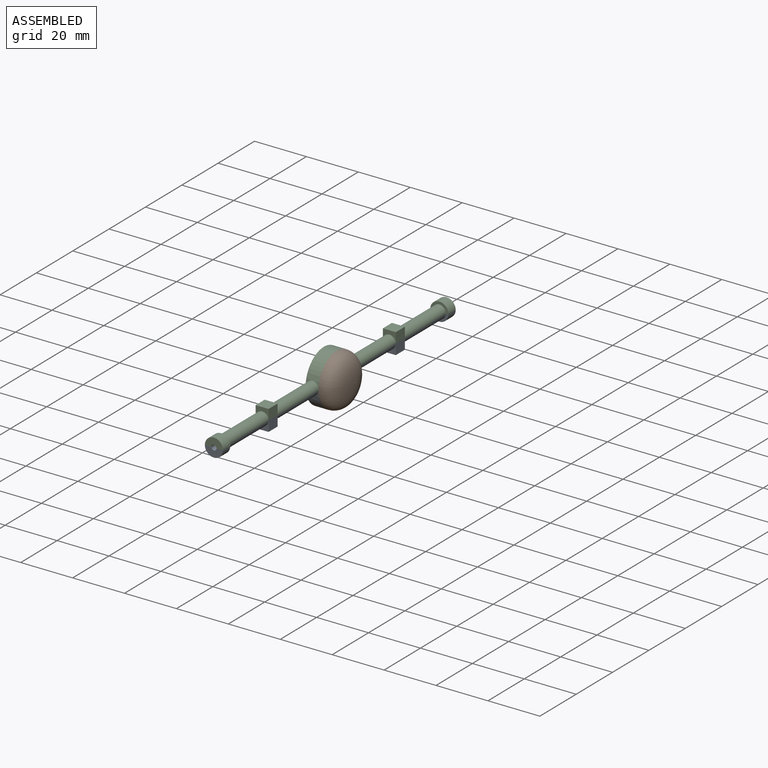
[diagram: assembled view]
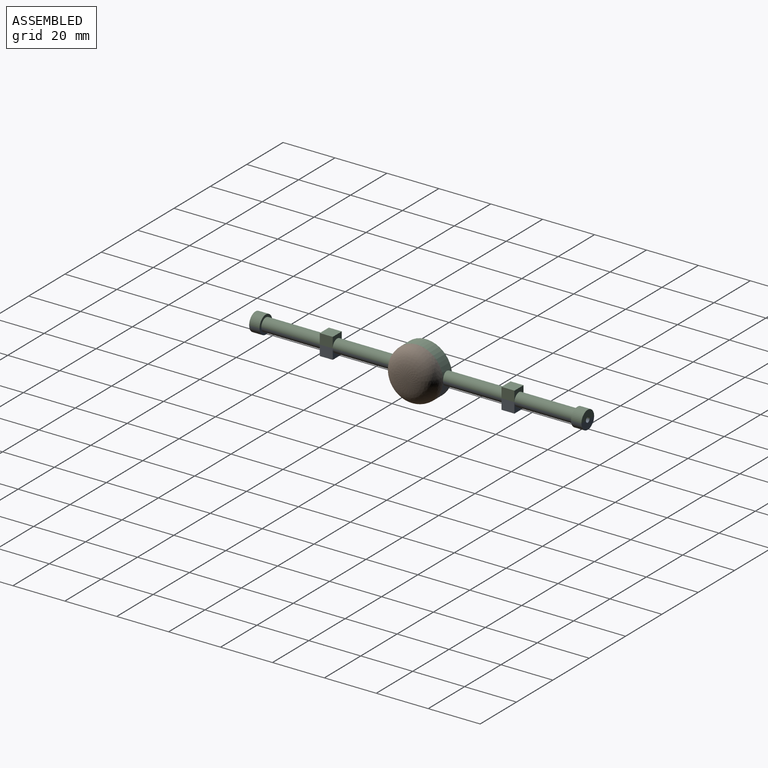
[diagram: assembled view, second angle]
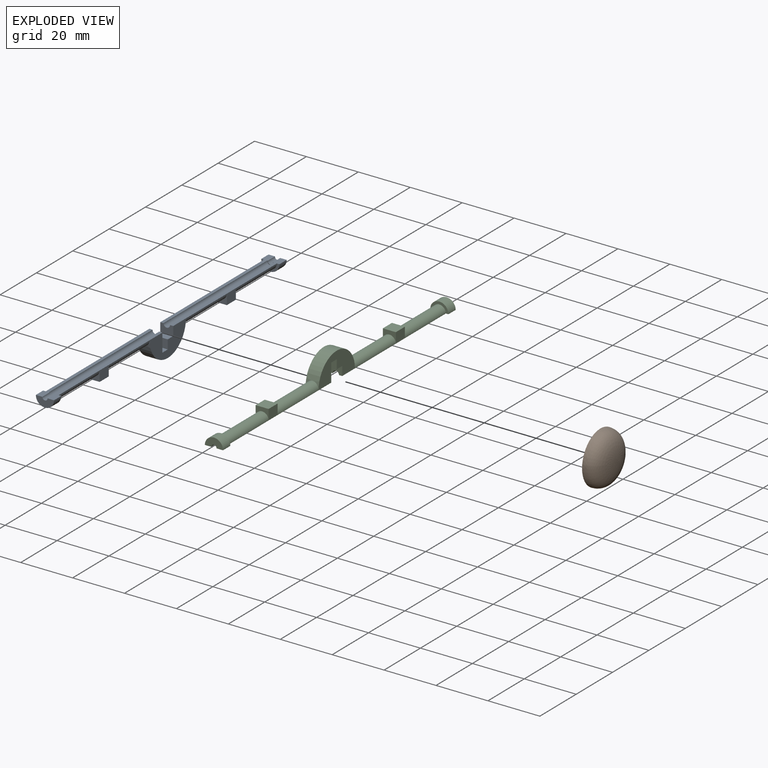
[diagram: exploded view]
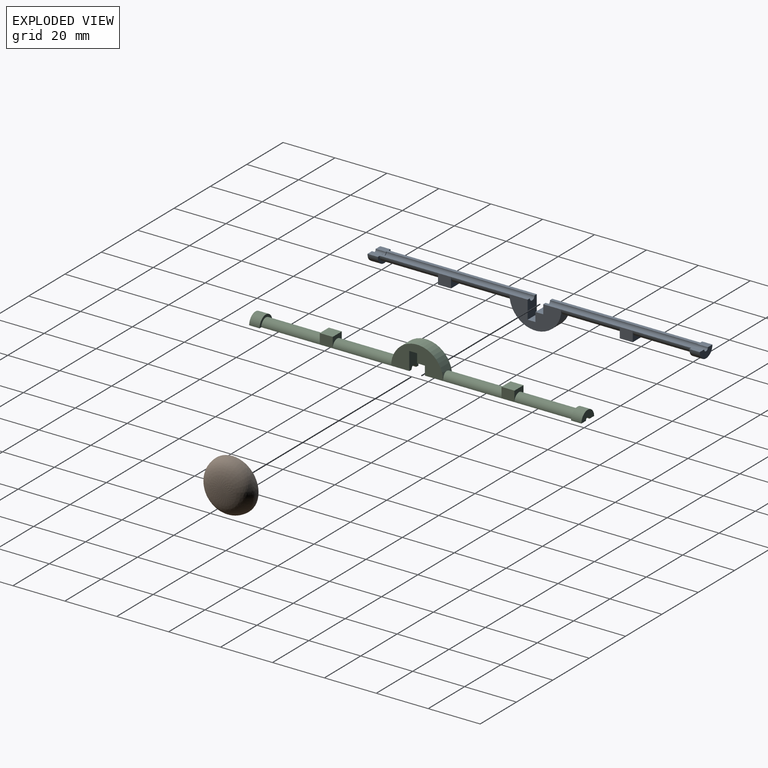
[diagram: exploded view, second angle]
ASSEMBLY  parts=3 mates=2
PART A: 38 faces, bbox 7x128x10 mm
  f0: plane 61x2.5mm, normal (0,0,-1), area 81.3mm2, adj f3,f4,f6,f13,f20,f21,f22,f23
  f1: plane 61x2.5mm, normal (0,0,-1), area 81.3mm2, adj f2,f6,f7,f12,f16,f17,f18,f19
  f2: cylinder r=2.5mm len=22.5mm, axis (0,1,0), area 176.7mm2, adj f1,f8,f16,f30
  f3: cylinder r=2.5mm len=22.5mm, axis (0,1,0), area 176.7mm2, adj f0,f5,f23,f24
  f4: cylinder r=2.5mm len=22.82mm, axis (0,1,0), area 178mm2, adj f0,f5,f9,f26
  f5: plane 61x2.5mm, normal (0,0,-1), area 81.2mm2, adj f3,f4,f10,f13,f20,f21,f22,f23
  f6: plane 20x10mm, normal (1,0,0), area 125.6mm2, adj f0,f1,f9,f11,f12,f13,f14,f15
  f7: cylinder r=2.5mm len=22.82mm, axis (0,1,0), area 178mm2, adj f1,f8,f9,f32
  f8: plane 61x2.5mm, normal (0,0,-1), area 81.2mm2, adj f2,f7,f10,f12,f16,f17,f18,f19
  f9: cylinder r=10mm len=20mm, axis (-1,0,0), area 137.3mm2, adj f4,f6,f7,f10
  f10: plane 20x10mm, normal (-1,0,0), area 125.6mm2, adj f5,f8,f9,f11,f12,f13,f14,f15
  f11: plane 5x3mm, normal (0,0,-1), area 15mm2, adj f6,f10,f12,f15
  f12: plane 7x5mm, normal (0,1,0), area 32.5mm2, adj f1,f6,f8,f10,f11,f36
  f13: plane 5x3.5mm, normal (0,-1,0), area 15mm2, adj f0,f5,f6,f10,f14,f35
  f14: plane 5x3mm, normal (0,0,-1), area 15mm2, adj f6,f10,f13,f15
  f15: plane 5x3.5mm, normal (0,-1,0), area 17.5mm2, adj f6,f10,f11,f14
  f16: plane 7x3.5mm, normal (0,1,0), area 9.4mm2, adj f1,f2,f8,f18
  f17: cylinder r=1mm len=4mm, axis (0,1,0), area 12.6mm2, adj f1,f8,f19,f37
  f18: cylinder r=3.5mm len=7mm, axis (0,1,0), area 44mm2, adj f1,f8,f16,f19
  f19: plane 7x3.5mm, normal (0,-1,0), area 17.7mm2, adj f1,f8,f17,f18
  f20: cylinder r=3.5mm len=7mm, axis (0,-1,0), area 44mm2, adj f0,f5,f22,f23
  f21: cylinder r=1mm len=4mm, axis (0,-1,0), area 12.6mm2, adj f0,f5,f22,f34
  f22: plane 7x3.5mm, normal (0,1,0), area 17.7mm2, adj f0,f5,f20,f21
  f23: plane 7x3.5mm, normal (0,-1,0), area 9.4mm2, adj f0,f3,f5,f20
  f24: plane 5x4mm, normal (0,1,0), area 10.2mm2, adj f3,f25,f27,f28
  f25: plane 5x4mm, normal (1,0,0), area 20mm2, adj f0,f24,f26,f28
  f26: plane 5x4mm, normal (0,-1,0), area 10.2mm2, adj f4,f25,f27,f28
  f27: plane 5x4mm, normal (-1,0,0), area 20mm2, adj f5,f24,f26,f28
  f28: plane 5x5mm, normal (0,0,1), area 25mm2, adj f24,f25,f26,f27
  f29: plane 5x4mm, normal (1,0,0), area 20mm2, adj f1,f30,f32,f33
  f30: plane 5x4mm, normal (0,-1,0), area 10.2mm2, adj f2,f29,f31,f33
  f31: plane 5x4mm, normal (-1,0,0), area 20mm2, adj f8,f30,f32,f33
  f32: plane 5x4mm, normal (0,1,0), area 10.2mm2, adj f7,f29,f31,f33
  f33: plane 5x5mm, normal (0,0,1), area 25mm2, adj f29,f30,f31,f32
  f34: plane 2.5x1.25mm, normal (0,-1,0), area 0.9mm2, adj f0,f5,f21,f35
  f35: cylinder r=1.25mm len=57mm, axis (0,1,0), area 223.8mm2, adj f0,f5,f13,f34
  f36: cylinder r=1.25mm len=57mm, axis (0,1,0), area 223.8mm2, adj f1,f8,f12,f37
  f37: plane 2.5x1.25mm, normal (0,1,0), area 0.9mm2, adj f1,f8,f17,f36
PART B: 11 faces, bbox 20x6x20 mm
  f0: plane 14x4.5mm, normal (1,0,0), area 52.5mm2, adj f1,f7,f9,f10
  f1: plane 6x4.05mm, normal (0,1,0), area 24.3mm2, adj f0,f4,f9,f10
  f2: plane 4.28x3.5mm, normal (-1,0,0), area 10.6mm2, adj f3,f7,f9
  f3: plane 4.28x3mm, normal (0,0,-1), area 12.8mm2, adj f2,f4,f7,f9
  f4: plane 7x4.5mm, normal (-1,0,0), area 31.3mm2, adj f1,f3,f5,f7,f9,f10
  f5: plane 4.28x3mm, normal (0,0,1), area 12.8mm2, adj f4,f6,f7,f10
  f6: plane 4.28x3.5mm, normal (-1,0,0), area 10.6mm2, adj f5,f7,f10
  f7: plane 20x20mm, normal (0,1,0), area 251.2mm2, adj f0,f2,f3,f4,f5,f6,f8,f9
  f8: revolved ~20x20mm, area 497.4mm2, adj f7
  f9: cylinder r=5mm len=6mm, axis (-1,0,0), area 26.6mm2, adj f0,f1,f2,f3,f4,f7
  f10: cylinder r=5mm len=6mm, axis (-1,0,0), area 26.6mm2, adj f0,f1,f4,f5,f6,f7
PART C: same geometry as A
PLACE A rot(axis=(0,1,0),180deg) t=(-44.54,28.25,-14.05)mm
PLACE B rot(axis=(0,0,1),90deg) t=(-42.04,-31.75,-14.05)mm
PLACE C t=(-44.54,28.25,-14.05)mm
MATE planar A.f5 <-> C.f0  axis (0,0,1) through (-43.29,-28.75,-14.05)mm
MATE fastened B.f7 <-> A.f10  axis (-1,0,0) through (-42.04,-28.75,-17.55)mm
